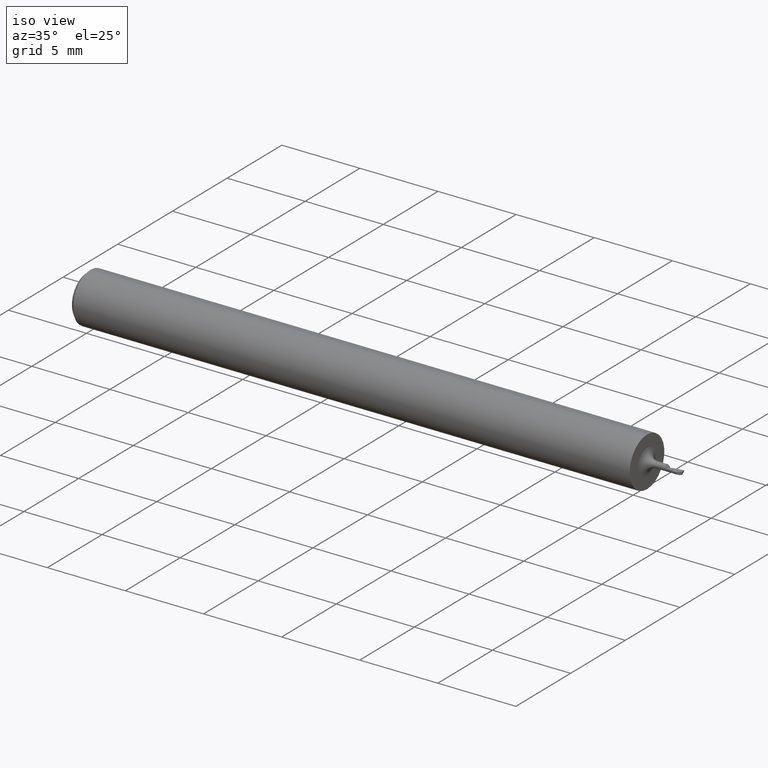
[diagram: clean part render]
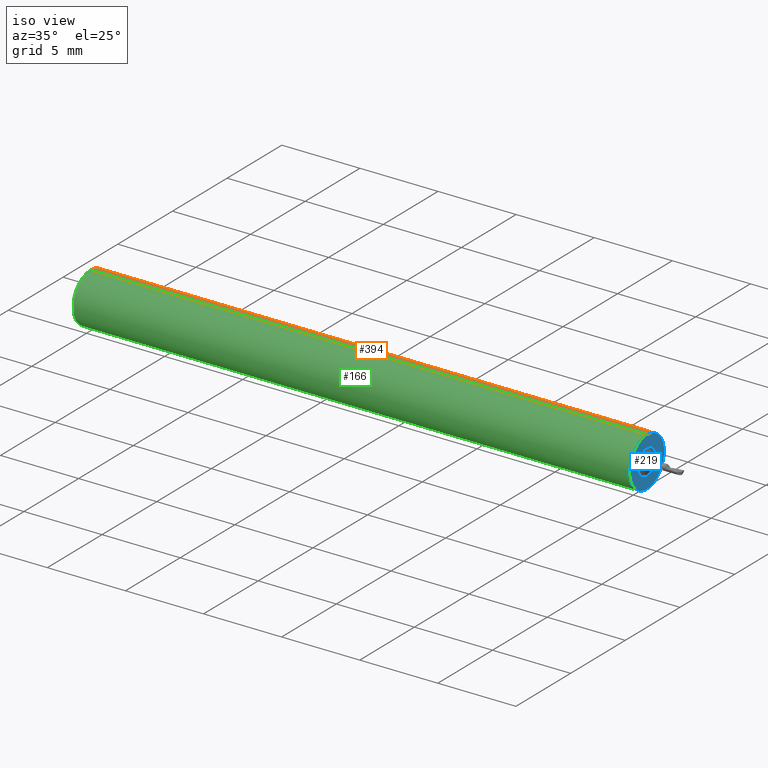
[diagram: same view with three faces highlighted in distinct colors, each labeled with its STEP entity id]
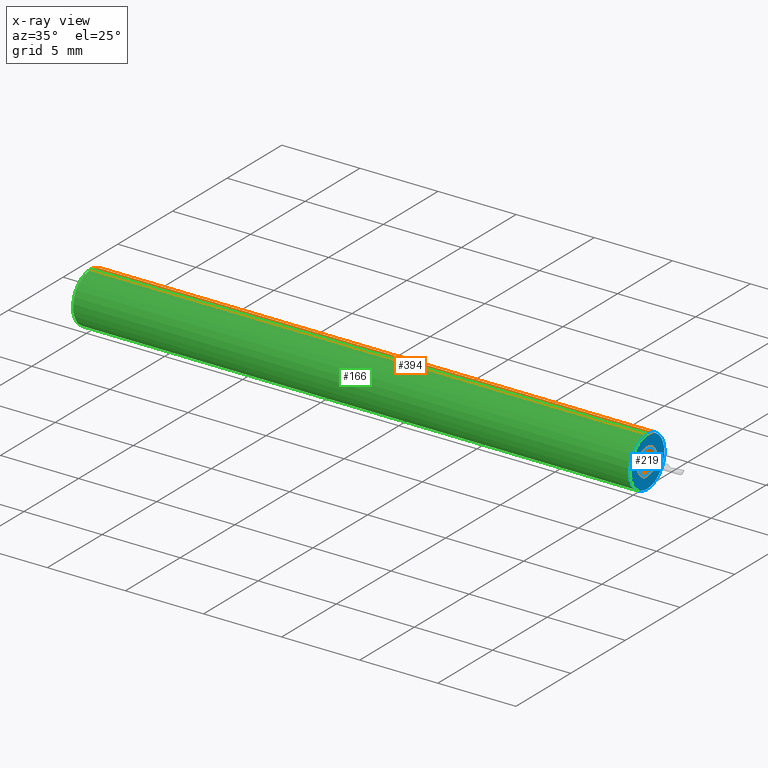
[diagram: x-ray of the same camera — body ghosted, the three highlighted faces saturated]
A machine part, iso view with three faces highlighted in distinct colors.
The next image is the same camera in x-ray (body ghosted, the three faces saturated) — at least one of them is partly hidden behind the body in this view.
Their STEP definitions:

[orange] entity #394 — the highlighted cylindrical surface (edge-blend (fillet) strip) has radius 1.5837 mm, axis along (-1, -0, -0).
#39 = CYLINDRICAL_SURFACE ( 'NONE', #469, 0.06234999999999997489 ) ;
#63 = CARTESIAN_POINT ( 'NONE',  ( 0.01000000000000000021, 7.635672792683748212E-18, -0.06235000000000000264 ) ) ;
#88 = AXIS2_PLACEMENT_3D ( 'NONE', #609, #89, #348 ) ;
#89 = DIRECTION ( 'NONE',  ( 1.000000000000000000, 0.000000000000000000, 0.000000000000000000 ) ) ;
#90 = VECTOR ( 'NONE', #332, 39.37007874015748143 ) ;
#92 = CARTESIAN_POINT ( 'NONE',  ( 0.000000000000000000, 7.635672792683743590E-18, -0.06234999999999997489 ) ) ;
#95 = DIRECTION ( 'NONE',  ( -1.000000000000000000, -0.000000000000000000, -0.000000000000000000 ) ) ;
#99 = DIRECTION ( 'NONE',  ( 0.000000000000000000, 0.000000000000000000, 1.000000000000000000 ) ) ;
#132 = ORIENTED_EDGE ( 'NONE', *, *, #330, .F. ) ;
#159 = ORIENTED_EDGE ( 'NONE', *, *, #659, .F. ) ;
#168 = EDGE_CURVE ( 'NONE', #406, #621, #593, .T. ) ;
#173 = VERTEX_POINT ( 'NONE', #63 ) ;
#177 = EDGE_LOOP ( 'NONE', ( #132, #234, #159, #221 ) ) ;
#189 = DIRECTION ( 'NONE',  ( 0.000000000000000000, 0.000000000000000000, 1.000000000000000000 ) ) ;
#221 = ORIENTED_EDGE ( 'NONE', *, *, #168, .F. ) ;
#225 = CARTESIAN_POINT ( 'NONE',  ( 0.000000000000000000, 0.000000000000000000, 0.06234999999999997489 ) ) ;
#227 = EDGE_CURVE ( 'NONE', #666, #173, #612, .T. ) ;
#234 = ORIENTED_EDGE ( 'NONE', *, *, #227, .T. ) ;
#243 = CARTESIAN_POINT ( 'NONE',  ( 0.01000000000000000021, 0.000000000000000000, 0.000000000000000000 ) ) ;
#254 = CARTESIAN_POINT ( 'NONE',  ( 1.413000000000000478, 0.000000000000000000, 0.06234999999999997489 ) ) ;
#262 = CARTESIAN_POINT ( 'NONE',  ( 0.000000000000000000, 0.000000000000000000, 0.000000000000000000 ) ) ;
#322 = VECTOR ( 'NONE', #668, 39.37007874015748143 ) ;
#330 = EDGE_CURVE ( 'NONE', #666, #406, #516, .T. ) ;
#332 = DIRECTION ( 'NONE',  ( -1.000000000000000000, -0.000000000000000000, -0.000000000000000000 ) ) ;
#348 = DIRECTION ( 'NONE',  ( 0.000000000000000000, 0.000000000000000000, -1.000000000000000000 ) ) ;
#361 = CIRCLE ( 'NONE', #614, 0.06235000000000000264 ) ;
#391 = CARTESIAN_POINT ( 'NONE',  ( 0.01000000000000000021, 0.000000000000000000, 0.06235000000000000264 ) ) ;
#394 = ADVANCED_FACE ( 'NONE', ( #460 ), #39, .T. ) ;
#404 = CARTESIAN_POINT ( 'NONE',  ( 1.413000000000000478, 7.635672792683743590E-18, -0.06234999999999997489 ) ) ;
#406 = VERTEX_POINT ( 'NONE', #254 ) ;
#460 = FACE_OUTER_BOUND ( 'NONE', #177, .T. ) ;
#469 = AXIS2_PLACEMENT_3D ( 'NONE', #262, #95, #99 ) ;
#516 = CIRCLE ( 'NONE', #88, 0.06234999999999997489 ) ;
#593 = LINE ( 'NONE', #225, #90 ) ;
#609 = CARTESIAN_POINT ( 'NONE',  ( 1.413000000000000478, 0.000000000000000000, 0.000000000000000000 ) ) ;
#612 = LINE ( 'NONE', #92, #322 ) ;
#614 = AXIS2_PLACEMENT_3D ( 'NONE', #243, #616, #189 ) ;
#616 = DIRECTION ( 'NONE',  ( -1.000000000000000000, -0.000000000000000000, -0.000000000000000000 ) ) ;
#621 = VERTEX_POINT ( 'NONE', #391 ) ;
#659 = EDGE_CURVE ( 'NONE', #621, #173, #361, .T. ) ;
#666 = VERTEX_POINT ( 'NONE', #404 ) ;
#668 = DIRECTION ( 'NONE',  ( -1.000000000000000000, -0.000000000000000000, -0.000000000000000000 ) ) ;

[blue] entity #219 — the highlighted planar face has unit normal (1, 0, 0).
#26 = VERTEX_POINT ( 'NONE', #149 ) ;
#40 = ORIENTED_EDGE ( 'NONE', *, *, #330, .T. ) ;
#49 = EDGE_CURVE ( 'NONE', #26, #93, #581, .T. ) ;
#71 = FACE_OUTER_BOUND ( 'NONE', #649, .T. ) ;
#88 = AXIS2_PLACEMENT_3D ( 'NONE', #609, #89, #348 ) ;
#89 = DIRECTION ( 'NONE',  ( 1.000000000000000000, 0.000000000000000000, 0.000000000000000000 ) ) ;
#93 = VERTEX_POINT ( 'NONE', #375 ) ;
#112 = DIRECTION ( 'NONE',  ( 1.000000000000000000, 0.000000000000000000, 0.000000000000000000 ) ) ;
#124 = ORIENTED_EDGE ( 'NONE', *, *, #622, .T. ) ;
#136 = ORIENTED_EDGE ( 'NONE', *, *, #585, .T. ) ;
#149 = CARTESIAN_POINT ( 'NONE',  ( 1.413000000000000478, 0.000000000000000000, 0.03250000000000000111 ) ) ;
#175 = AXIS2_PLACEMENT_3D ( 'NONE', #634, #518, #464 ) ;
#197 = CIRCLE ( 'NONE', #230, 0.06234999999999997489 ) ;
#219 = ADVANCED_FACE ( 'NONE', ( #220, #71 ), #381, .T. ) ;
#220 = FACE_BOUND ( 'NONE', #595, .T. ) ;
#230 = AXIS2_PLACEMENT_3D ( 'NONE', #587, #112, #289 ) ;
#254 = CARTESIAN_POINT ( 'NONE',  ( 1.413000000000000478, 0.000000000000000000, 0.06234999999999997489 ) ) ;
#269 = CIRCLE ( 'NONE', #591, 0.03250000000000000111 ) ;
#287 = CARTESIAN_POINT ( 'NONE',  ( 1.413000000000000478, 0.1123499999999999638, 0.000000000000000000 ) ) ;
#289 = DIRECTION ( 'NONE',  ( 0.000000000000000000, 0.000000000000000000, -1.000000000000000000 ) ) ;
#330 = EDGE_CURVE ( 'NONE', #666, #406, #516, .T. ) ;
#348 = DIRECTION ( 'NONE',  ( 0.000000000000000000, 0.000000000000000000, -1.000000000000000000 ) ) ;
#375 = CARTESIAN_POINT ( 'NONE',  ( 1.413000000000000478, 3.980102097228898355E-18, -0.03250000000000000111 ) ) ;
#381 = PLANE ( 'NONE',  #558 ) ;
#390 = ORIENTED_EDGE ( 'NONE', *, *, #49, .T. ) ;
#404 = CARTESIAN_POINT ( 'NONE',  ( 1.413000000000000478, 7.635672792683743590E-18, -0.06234999999999997489 ) ) ;
#406 = VERTEX_POINT ( 'NONE', #254 ) ;
#434 = DIRECTION ( 'NONE',  ( 1.000000000000000000, 0.000000000000000000, 0.000000000000000000 ) ) ;
#444 = DIRECTION ( 'NONE',  ( 0.000000000000000000, 0.000000000000000000, 1.000000000000000000 ) ) ;
#464 = DIRECTION ( 'NONE',  ( 0.000000000000000000, 0.000000000000000000, 1.000000000000000000 ) ) ;
#487 = DIRECTION ( 'NONE',  ( 0.000000000000000000, 0.000000000000000000, -1.000000000000000000 ) ) ;
#516 = CIRCLE ( 'NONE', #88, 0.06234999999999997489 ) ;
#518 = DIRECTION ( 'NONE',  ( -1.000000000000000000, -0.000000000000000000, -0.000000000000000000 ) ) ;
#542 = DIRECTION ( 'NONE',  ( -1.000000000000000000, -0.000000000000000000, -0.000000000000000000 ) ) ;
#558 = AXIS2_PLACEMENT_3D ( 'NONE', #287, #434, #487 ) ;
#581 = CIRCLE ( 'NONE', #175, 0.03250000000000000111 ) ;
#585 = EDGE_CURVE ( 'NONE', #93, #26, #269, .T. ) ;
#587 = CARTESIAN_POINT ( 'NONE',  ( 1.413000000000000478, 0.000000000000000000, 0.000000000000000000 ) ) ;
#591 = AXIS2_PLACEMENT_3D ( 'NONE', #661, #542, #444 ) ;
#595 = EDGE_LOOP ( 'NONE', ( #390, #136 ) ) ;
#609 = CARTESIAN_POINT ( 'NONE',  ( 1.413000000000000478, 0.000000000000000000, 0.000000000000000000 ) ) ;
#622 = EDGE_CURVE ( 'NONE', #406, #666, #197, .T. ) ;
#634 = CARTESIAN_POINT ( 'NONE',  ( 1.413000000000000478, 0.000000000000000000, 0.000000000000000000 ) ) ;
#649 = EDGE_LOOP ( 'NONE', ( #124, #40 ) ) ;
#661 = CARTESIAN_POINT ( 'NONE',  ( 1.413000000000000478, 0.000000000000000000, 0.000000000000000000 ) ) ;
#666 = VERTEX_POINT ( 'NONE', #404 ) ;

[green] entity #166 — the highlighted cylindrical surface (edge-blend (fillet) strip) has radius 1.5837 mm, axis along (-1, -0, -0).
#32 = AXIS2_PLACEMENT_3D ( 'NONE', #540, #290, #384 ) ;
#62 = ORIENTED_EDGE ( 'NONE', *, *, #155, .F. ) ;
#63 = CARTESIAN_POINT ( 'NONE',  ( 0.01000000000000000021, 7.635672792683748212E-18, -0.06235000000000000264 ) ) ;
#90 = VECTOR ( 'NONE', #332, 39.37007874015748143 ) ;
#92 = CARTESIAN_POINT ( 'NONE',  ( 0.000000000000000000, 7.635672792683743590E-18, -0.06234999999999997489 ) ) ;
#96 = ORIENTED_EDGE ( 'NONE', *, *, #227, .F. ) ;
#112 = DIRECTION ( 'NONE',  ( 1.000000000000000000, 0.000000000000000000, 0.000000000000000000 ) ) ;
#155 = EDGE_CURVE ( 'NONE', #173, #621, #526, .T. ) ;
#166 = ADVANCED_FACE ( 'NONE', ( #485 ), #491, .T. ) ;
#168 = EDGE_CURVE ( 'NONE', #406, #621, #593, .T. ) ;
#173 = VERTEX_POINT ( 'NONE', #63 ) ;
#197 = CIRCLE ( 'NONE', #230, 0.06234999999999997489 ) ;
#225 = CARTESIAN_POINT ( 'NONE',  ( 0.000000000000000000, 0.000000000000000000, 0.06234999999999997489 ) ) ;
#227 = EDGE_CURVE ( 'NONE', #666, #173, #612, .T. ) ;
#230 = AXIS2_PLACEMENT_3D ( 'NONE', #587, #112, #289 ) ;
#232 = AXIS2_PLACEMENT_3D ( 'NONE', #596, #328, #335 ) ;
#254 = CARTESIAN_POINT ( 'NONE',  ( 1.413000000000000478, 0.000000000000000000, 0.06234999999999997489 ) ) ;
#289 = DIRECTION ( 'NONE',  ( 0.000000000000000000, 0.000000000000000000, -1.000000000000000000 ) ) ;
#290 = DIRECTION ( 'NONE',  ( -1.000000000000000000, -0.000000000000000000, -0.000000000000000000 ) ) ;
#298 = EDGE_LOOP ( 'NONE', ( #96, #305, #387, #62 ) ) ;
#305 = ORIENTED_EDGE ( 'NONE', *, *, #622, .F. ) ;
#322 = VECTOR ( 'NONE', #668, 39.37007874015748143 ) ;
#328 = DIRECTION ( 'NONE',  ( -1.000000000000000000, -0.000000000000000000, -0.000000000000000000 ) ) ;
#332 = DIRECTION ( 'NONE',  ( -1.000000000000000000, -0.000000000000000000, -0.000000000000000000 ) ) ;
#335 = DIRECTION ( 'NONE',  ( 0.000000000000000000, 0.000000000000000000, 1.000000000000000000 ) ) ;
#384 = DIRECTION ( 'NONE',  ( 0.000000000000000000, 0.000000000000000000, 1.000000000000000000 ) ) ;
#387 = ORIENTED_EDGE ( 'NONE', *, *, #168, .T. ) ;
#391 = CARTESIAN_POINT ( 'NONE',  ( 0.01000000000000000021, 0.000000000000000000, 0.06235000000000000264 ) ) ;
#404 = CARTESIAN_POINT ( 'NONE',  ( 1.413000000000000478, 7.635672792683743590E-18, -0.06234999999999997489 ) ) ;
#406 = VERTEX_POINT ( 'NONE', #254 ) ;
#485 = FACE_OUTER_BOUND ( 'NONE', #298, .T. ) ;
#491 = CYLINDRICAL_SURFACE ( 'NONE', #32, 0.06234999999999997489 ) ;
#526 = CIRCLE ( 'NONE', #232, 0.06235000000000000264 ) ;
#540 = CARTESIAN_POINT ( 'NONE',  ( 0.000000000000000000, 0.000000000000000000, 0.000000000000000000 ) ) ;
#587 = CARTESIAN_POINT ( 'NONE',  ( 1.413000000000000478, 0.000000000000000000, 0.000000000000000000 ) ) ;
#593 = LINE ( 'NONE', #225, #90 ) ;
#596 = CARTESIAN_POINT ( 'NONE',  ( 0.01000000000000000021, 0.000000000000000000, 0.000000000000000000 ) ) ;
#612 = LINE ( 'NONE', #92, #322 ) ;
#621 = VERTEX_POINT ( 'NONE', #391 ) ;
#622 = EDGE_CURVE ( 'NONE', #406, #666, #197, .T. ) ;
#666 = VERTEX_POINT ( 'NONE', #404 ) ;
#668 = DIRECTION ( 'NONE',  ( -1.000000000000000000, -0.000000000000000000, -0.000000000000000000 ) ) ;